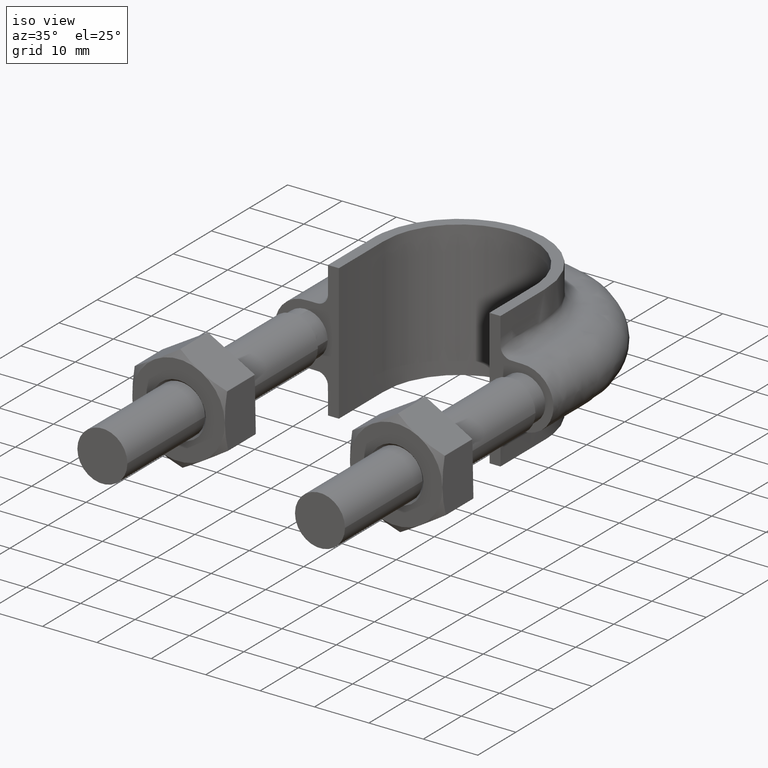
[diagram: clean part render]
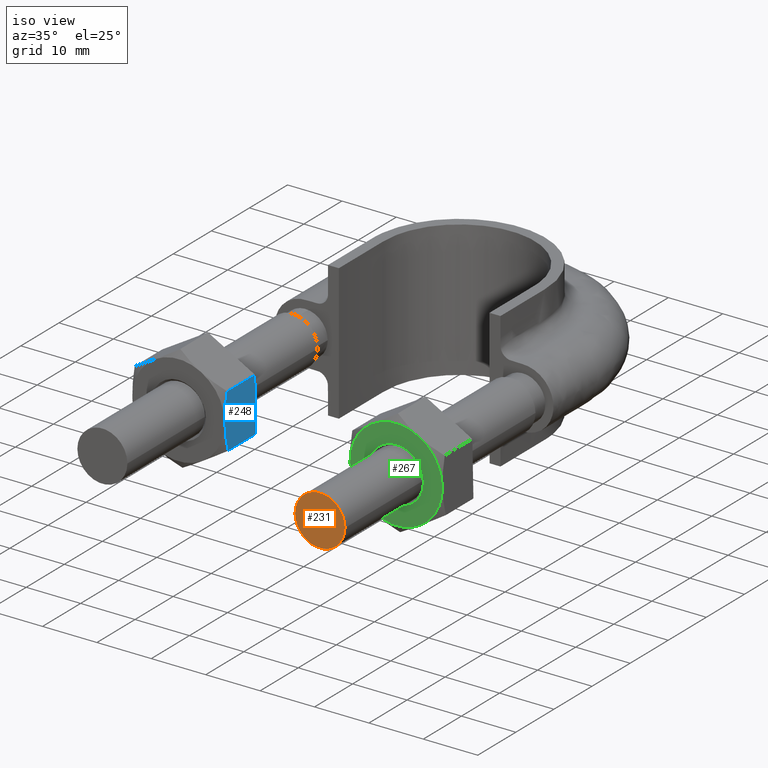
[diagram: same view with three faces highlighted in distinct colors, each labeled with its STEP entity id]
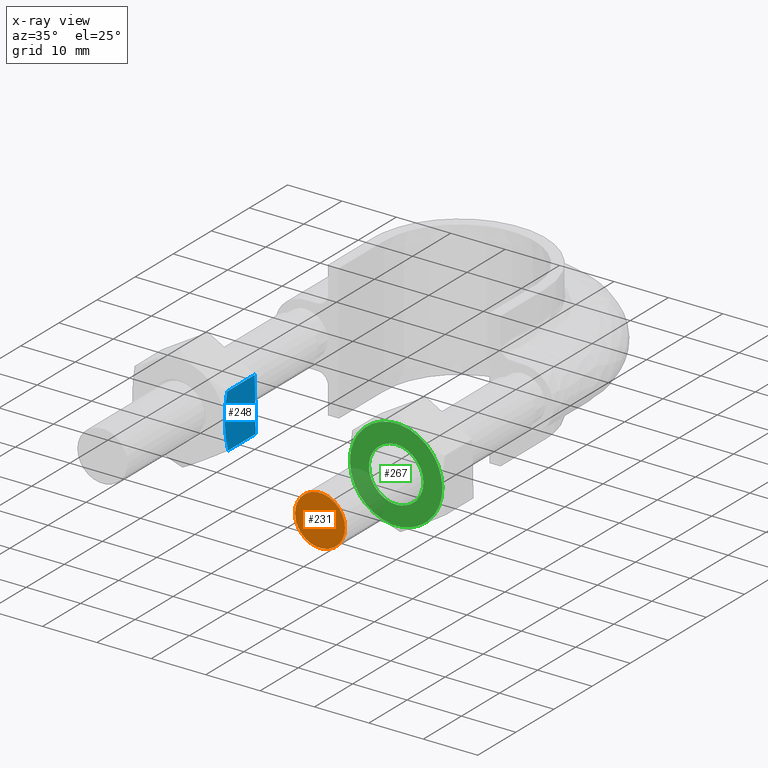
[diagram: x-ray of the same camera — body ghosted, the three highlighted faces saturated]
A machine part, iso view with three faces highlighted in distinct colors.
The next image is the same camera in x-ray (body ghosted, the three faces saturated) — at least one of them is partly hidden behind the body in this view.
Their STEP definitions:

[orange] entity #231 — the highlighted planar face has unit normal (-0, -1, -0).
#231 = ADVANCED_FACE( '', ( #310 ), #311, .T. );
#310 = FACE_OUTER_BOUND( '', #1168, .T. );
#311 = PLANE( '', #1169 );
#1168 = EDGE_LOOP( '', ( #1375 ) );
#1169 = AXIS2_PLACEMENT_3D( '', #1376, #1377, #1378 );
#1375 = ORIENTED_EDGE( '', *, *, #1753, .T. );
#1376 = CARTESIAN_POINT( '', ( 20.0000000000000, -9.79685083057902E-015, -4.49898216546641E-031 ) );
#1377 = DIRECTION( '', ( -4.89842541528951E-016, -1.00000000000000, -6.12303176911189E-017 ) );
#1378 = DIRECTION( '', ( -1.00000000000000, 4.89842541528951E-016, 6.03777548009827E-048 ) );
#1753 = EDGE_CURVE( '', #1891, #1891, #1892, .T. );
#1891 = VERTEX_POINT( '', #2269 );
#1892 = CIRCLE( '', #2270, 4.60000000000000 );
#2269 = CARTESIAN_POINT( '', ( 24.6000000000000, -1.20501265216122E-014, -5.53374806352369E-031 ) );
#2270 = AXIS2_PLACEMENT_3D( '', #2613, #2614, #2615 );
#2613 = CARTESIAN_POINT( '', ( 20.0000000000000, -9.79685083057902E-015, -4.49898216546641E-031 ) );
#2614 = DIRECTION( '', ( -4.89842541528951E-016, -1.00000000000000, -6.12303176911189E-017 ) );
#2615 = DIRECTION( '', ( 1.00000000000000, -4.89842541528951E-016, -2.24949108273321E-032 ) );

[blue] entity #248 — the highlighted planar face has unit normal (-0.9998, 0, -0.0204).
#248 = ADVANCED_FACE( '', ( #349 ), #350, .F. );
#349 = FACE_OUTER_BOUND( '', #1207, .T. );
#350 = PLANE( '', #1208 );
#1207 = EDGE_LOOP( '', ( #1502, #1503, #1504, #1505, #1506 ) );
#1208 = AXIS2_PLACEMENT_3D( '', #1507, #1508, #1509 );
#1502 = ORIENTED_EDGE( '', *, *, #1803, .F. );
#1503 = ORIENTED_EDGE( '', *, *, #1756, .F. );
#1504 = ORIENTED_EDGE( '', *, *, #1804, .F. );
#1505 = ORIENTED_EDGE( '', *, *, #1772, .F. );
#1506 = ORIENTED_EDGE( '', *, *, #1782, .F. );
#1507 = CARTESIAN_POINT( '', ( -11.6016362227439, 28.0000000000024, 5.07945067878463 ) );
#1508 = DIRECTION( '', ( -0.999792881822458, 4.90987229944995E-016, -0.0203517433441231 ) );
#1509 = DIRECTION( '', ( -0.0203517433441231, 1.70345414838081E-033, 0.999792881822458 ) );
#1756 = EDGE_CURVE( '', #1895, #1898, #1899, .T. );
#1772 = EDGE_CURVE( '', #1926, #1928, #1929, .T. );
#1782 = EDGE_CURVE( '', #1945, #1926, #1947, .F. );
#1803 = EDGE_CURVE( '', #1898, #1945, #1976, .T. );
#1804 = EDGE_CURVE( '', #1928, #1895, #1977, .T. );
#1895 = VERTEX_POINT( '', #2273 );
#1898 = VERTEX_POINT( '', #2276 );
#1899 = B_SPLINE_CURVE_WITH_KNOTS( '', 3, ( #2277, #2278, #2279, #2280, #2281, #2282 ), .UNSPECIFIED., .F., .F., ( 4, 2, 4 ), ( 2.62511296561892E-017, 0.00246745482903607, 0.00493490965807211 ), .UNSPECIFIED. );
#1926 = VERTEX_POINT( '', #2333 );
#1928 = VERTEX_POINT( '', #2335 );
#1929 = LINE( '', #2336, #2337 );
#1945 = VERTEX_POINT( '', #2357 );
#1947 = LINE( '', #2359, #2360 );
#1976 = B_SPLINE_CURVE_WITH_KNOTS( '', 3, ( #2426, #2427, #2428, #2429, #2430, #2431 ), .UNSPECIFIED., .F., .F., ( 4, 2, 4 ), ( 1.54498809579184E-018, 0.00246745482903608, 0.00493490965807216 ), .UNSPECIFIED. );
#1977 = LINE( '', #2432, #2433 );
#2273 = CARTESIAN_POINT( '', ( -11.4024948893875, 20.7505553499489, -4.70349932209960 ) );
#2276 = CARTESIAN_POINT( '', ( -11.5017605045091, 20.0000000000024, 0.172989818425051 ) );
#2277 = CARTESIAN_POINT( '', ( -11.4024948893875, 20.7505553499489, -4.70349932209957 ) );
#2278 = CARTESIAN_POINT( '', ( -11.4187137564376, 20.5215585493680, -3.90673672767698 ) );
#2279 = CARTESIAN_POINT( '', ( -11.4350588221731, 20.3328582843730, -3.10377453918024 ) );
#2280 = CARTESIAN_POINT( '', ( -11.4681128400870, 20.0716504305314, -1.47997399948366 ) );
#2281 = CARTESIAN_POINT( '', ( -11.4848244766711, 20.0000000000024, -0.659003775070646 ) );
#2282 = CARTESIAN_POINT( '', ( -11.5017605045091, 20.0000000000024, 0.172989818425051 ) );
#2333 = CARTESIAN_POINT( '', ( -11.6010261196308, 28.0000000000024, 5.04947895894972 ) );
#2335 = CARTESIAN_POINT( '', ( -11.4024948893875, 28.0000000000024, -4.70349932209962 ) );
#2336 = CARTESIAN_POINT( '', ( -11.7012075892815, 28.0000000000024, 9.97096006028513 ) );
#2337 = VECTOR( '', #2647, 1000.00000000000 );
#2357 = CARTESIAN_POINT( '', ( -11.6010261196308, 20.7505553499489, 5.04947895894972 ) );
#2359 = CARTESIAN_POINT( '', ( -11.6010261196308, 28.0000000000024, 5.04947895894972 ) );
#2360 = VECTOR( '', #2667, 1000.00000000000 );
#2426 = CARTESIAN_POINT( '', ( -11.5017605045091, 20.0000000000024, 0.172989818425050 ) );
#2427 = CARTESIAN_POINT( '', ( -11.5186965323471, 20.0000000000024, 1.00498341192076 ) );
#2428 = CARTESIAN_POINT( '', ( -11.5354081689313, 20.0716504305314, 1.82595363633379 ) );
#2429 = CARTESIAN_POINT( '', ( -11.5684621868452, 20.3328582843730, 3.44975417603040 ) );
#2430 = CARTESIAN_POINT( '', ( -11.5848072525807, 20.5215585493680, 4.25271636452707 ) );
#2431 = CARTESIAN_POINT( '', ( -11.6010261196308, 20.7505553499489, 5.04947895894967 ) );
#2432 = CARTESIAN_POINT( '', ( -11.4024948893875, 28.0000000000024, -4.70349932209962 ) );
#2433 = VECTOR( '', #2696, 1000.00000000000 );
#2647 = DIRECTION( '', ( 0.0203517433441231, 5.12484860950782E-017, -0.999792881822458 ) );
#2667 = DIRECTION( '', ( -4.89842541528950E-016, -1.00000000000000, -6.12303176911188E-017 ) );
#2696 = DIRECTION( '', ( -4.89842541528950E-016, -1.00000000000000, -6.12303176911188E-017 ) );

[green] entity #267 — the highlighted planar face has unit normal (0, 1, 0).
#267 = ADVANCED_FACE( '', ( #391, #392 ), #393, .F. );
#391 = FACE_OUTER_BOUND( '', #1249, .T. );
#392 = FACE_BOUND( '', #1250, .T. );
#393 = PLANE( '', #1251 );
#1249 = EDGE_LOOP( '', ( #1641, #1642, #1643, #1644, #1645, #1646 ) );
#1250 = EDGE_LOOP( '', ( #1647 ) );
#1251 = AXIS2_PLACEMENT_3D( '', #1648, #1649, #1650 );
#1641 = ORIENTED_EDGE( '', *, *, #1839, .F. );
#1642 = ORIENTED_EDGE( '', *, *, #1845, .F. );
#1643 = ORIENTED_EDGE( '', *, *, #1819, .F. );
#1644 = ORIENTED_EDGE( '', *, *, #1836, .F. );
#1645 = ORIENTED_EDGE( '', *, *, #1809, .F. );
#1646 = ORIENTED_EDGE( '', *, *, #1846, .F. );
#1647 = ORIENTED_EDGE( '', *, *, #1847, .T. );
#1648 = CARTESIAN_POINT( '', ( 20.0000000000000, 20.0000000000024, 4.52556828817174E-015 ) );
#1649 = DIRECTION( '', ( 2.99932144364429E-032, 1.00000000000000, 6.12303176911191E-017 ) );
#1650 = DIRECTION( '', ( 1.00000000000000, 5.47382212626882E-048, -4.89842541528951E-016 ) );
#1809 = EDGE_CURVE( '', #1984, #1986, #1987, .T. );
#1819 = EDGE_CURVE( '', #1989, #2004, #2005, .T. );
#1836 = EDGE_CURVE( '', #1986, #1989, #2035, .T. );
#1839 = EDGE_CURVE( '', #2039, #2040, #2041, .T. );
#1845 = EDGE_CURVE( '', #2004, #2039, #2049, .T. );
#1846 = EDGE_CURVE( '', #2040, #1984, #2050, .T. );
#1847 = EDGE_CURVE( '', #2051, #2051, #2052, .T. );
#1984 = VERTEX_POINT( '', #2440 );
#1986 = VERTEX_POINT( '', #2447 );
#1987 = CIRCLE( '', #2448, 8.50000000000000 );
#1989 = VERTEX_POINT( '', #2455 );
#2004 = VERTEX_POINT( '', #2484 );
#2005 = CIRCLE( '', #2485, 8.50000000000000 );
#2035 = CIRCLE( '', #2527, 8.50000000000000 );
#2039 = VERTEX_POINT( '', #2536 );
#2040 = VERTEX_POINT( '', #2537 );
#2041 = CIRCLE( '', #2538, 8.50000000000000 );
#2049 = CIRCLE( '', #2558, 8.50000000000000 );
#2050 = CIRCLE( '', #2559, 8.50000000000000 );
#2051 = VERTEX_POINT( '', #2560 );
#2052 = CIRCLE( '', #2561, 5.00000000000000 );
#2440 = CARTESIAN_POINT( '', ( 28.4982394954909, 20.0000000000024, 0.172989818425051 ) );
#2447 = CARTESIAN_POINT( '', ( 24.3989333250976, 20.0000000000024, -7.27319638132684 ) );
#2448 = AXIS2_PLACEMENT_3D( '', #2706, #2707, #2708 );
#2455 = CARTESIAN_POINT( '', ( 15.9006938296067, 20.0000000000024, -7.44618619975189 ) );
#2484 = CARTESIAN_POINT( '', ( 11.5017605045091, 20.0000000000024, -0.172989818425042 ) );
#2485 = AXIS2_PLACEMENT_3D( '', #2719, #2720, #2721 );
#2527 = AXIS2_PLACEMENT_3D( '', #2753, #2754, #2755 );
#2536 = CARTESIAN_POINT( '', ( 15.6010666749024, 20.0000000000024, 7.27319638132682 ) );
#2537 = CARTESIAN_POINT( '', ( 24.0993061703933, 20.0000000000024, 7.44618619975190 ) );
#2538 = AXIS2_PLACEMENT_3D( '', #2759, #2760, #2761 );
#2558 = AXIS2_PLACEMENT_3D( '', #2767, #2768, #2769 );
#2559 = AXIS2_PLACEMENT_3D( '', #2770, #2771, #2772 );
#2560 = CARTESIAN_POINT( '', ( 20.0000000000000, 20.0000000000024, 5.00000000000000 ) );
#2561 = AXIS2_PLACEMENT_3D( '', #2773, #2774, #2775 );
#2706 = CARTESIAN_POINT( '', ( 20.0000000000000, 20.0000000000024, 4.52556828817174E-015 ) );
#2707 = DIRECTION( '', ( 2.99932144364429E-032, 1.00000000000000, 6.12303176911191E-017 ) );
#2708 = DIRECTION( '', ( 0.000000000000000, -6.12303176911191E-017, 1.00000000000000 ) );
#2719 = CARTESIAN_POINT( '', ( 20.0000000000000, 20.0000000000024, 4.52556828817174E-015 ) );
#2720 = DIRECTION( '', ( 2.99932144364429E-032, 1.00000000000000, 6.12303176911191E-017 ) );
#2721 = DIRECTION( '', ( 0.000000000000000, -6.12303176911191E-017, 1.00000000000000 ) );
#2753 = CARTESIAN_POINT( '', ( 20.0000000000000, 20.0000000000024, 4.52556828817174E-015 ) );
#2754 = DIRECTION( '', ( 2.99932144364429E-032, 1.00000000000000, 6.12303176911191E-017 ) );
#2755 = DIRECTION( '', ( 0.000000000000000, -6.12303176911191E-017, 1.00000000000000 ) );
#2759 = CARTESIAN_POINT( '', ( 20.0000000000000, 20.0000000000024, 4.52556828817174E-015 ) );
#2760 = DIRECTION( '', ( 2.99932144364429E-032, 1.00000000000000, 6.12303176911191E-017 ) );
#2761 = DIRECTION( '', ( 0.000000000000000, -6.12303176911191E-017, 1.00000000000000 ) );
#2767 = CARTESIAN_POINT( '', ( 20.0000000000000, 20.0000000000024, 4.52556828817174E-015 ) );
#2768 = DIRECTION( '', ( 2.99932144364429E-032, 1.00000000000000, 6.12303176911191E-017 ) );
#2769 = DIRECTION( '', ( 0.000000000000000, -6.12303176911191E-017, 1.00000000000000 ) );
#2770 = CARTESIAN_POINT( '', ( 20.0000000000000, 20.0000000000024, 4.52556828817174E-015 ) );
#2771 = DIRECTION( '', ( 2.99932144364429E-032, 1.00000000000000, 6.12303176911191E-017 ) );
#2772 = DIRECTION( '', ( 0.000000000000000, -6.12303176911191E-017, 1.00000000000000 ) );
#2773 = CARTESIAN_POINT( '', ( 20.0000000000000, 20.0000000000024, 4.52556828817174E-015 ) );
#2774 = DIRECTION( '', ( 2.99932144364429E-032, 1.00000000000000, 6.12303176911191E-017 ) );
#2775 = DIRECTION( '', ( 0.000000000000000, -6.12303176911191E-017, 1.00000000000000 ) );